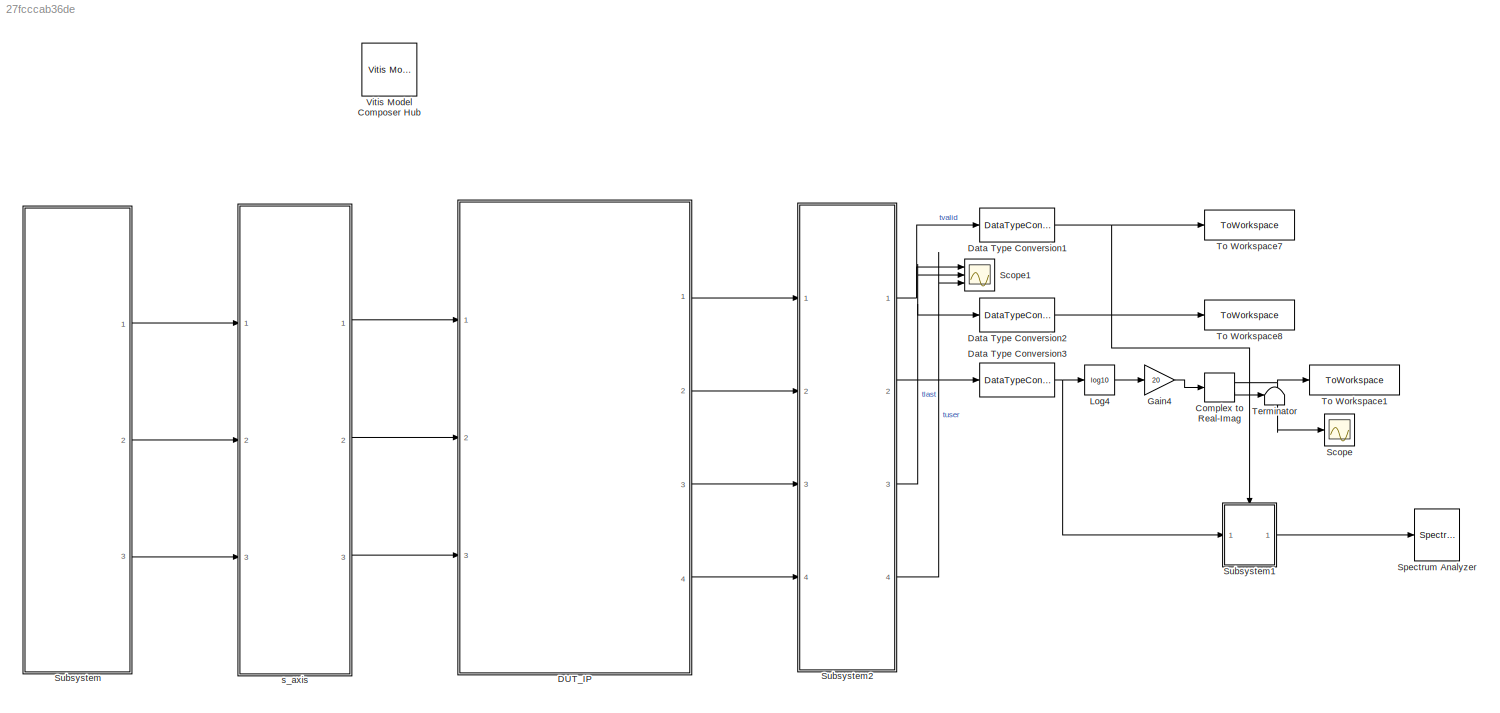
MODEL slx_27fcccab36de
KIND model
CONFIG AbsTol = auto
CONFIG EnableMultiTasking = off
CONFIG FixedStep = auto
CONFIG InitFcn = f = 12.288e6;\nfs = 61.44e6;\nN = 8;\nn = 0:N-1;\nHamming = 0.54 - 0.46 * cos(2*pi*n/N);\nNorm_Ham = sum(Hamming);\nHanning = 0.5 * (1 + cos(2*pi*n/N));\nNorm_Han = sum(Hanning);\n
CONFIG MaxStep = auto
CONFIG MinStep = auto
CONFIG RelTol = 1e-3
CONFIG SampleTimeConstraint = Unconstrained
CONFIG SolverName = VariableStepAuto
CONFIG StartTime = 0.0
CONFIG StopTime = 2048*15/fs
BLOCK [ComplexToRealImag] Complex to Real-Imag
  Ports = [1, 2]
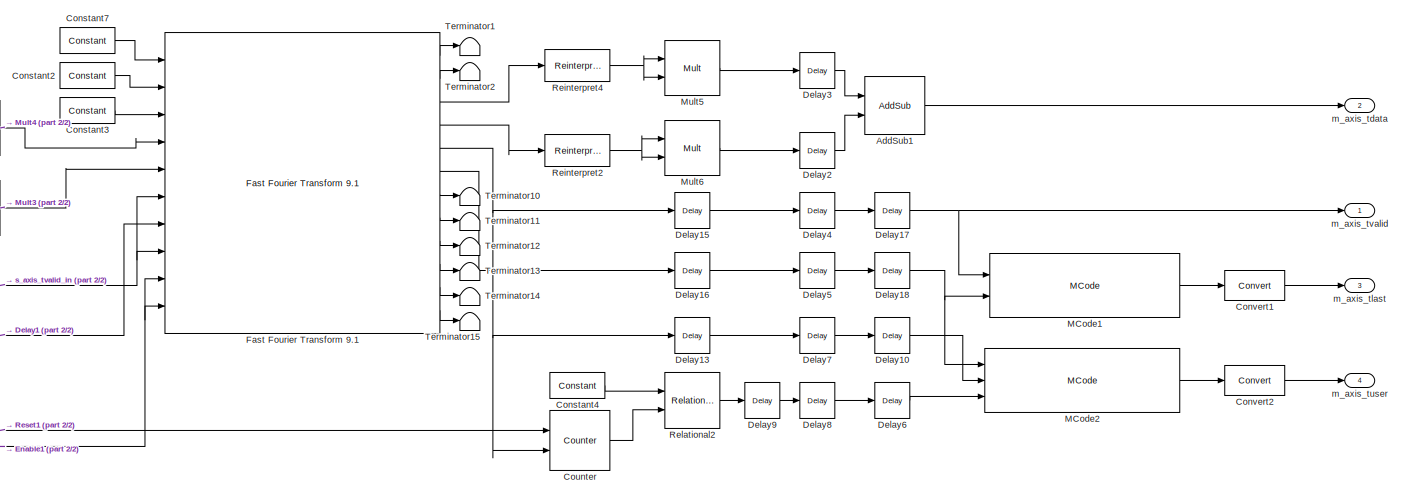
[diagram: DUT_IP - part 1/2, right side, full height]
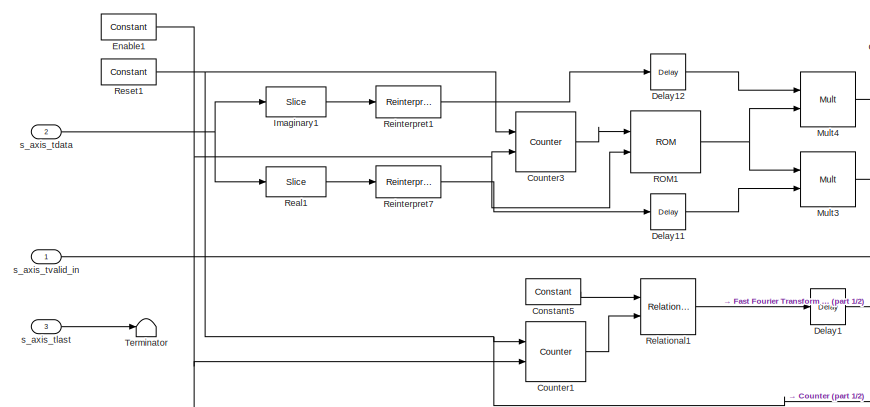
[diagram: DUT_IP - part 2/2, left side, full height]
BLOCK [SubSystem] DUT_IP
  Ports = [3, 4]
  RequestExecContextInheritance = off
BLOCK [Reference] DUT_IP/AddSub1  REF=hdlBasic/AddSub
  Ports = [2, 1]
  SourceBlock = hdlBasic/AddSub
  SourceType = Adder/Subtracter Block
BLOCK [Reference] DUT_IP/Constant2  REF=hdlBasic/Constant
  Ports = [0, 1]
  SourceBlock = hdlBasic/Constant
  SourceType = Constant Block Block
BLOCK [Reference] DUT_IP/Constant3  REF=hdlBasic/Constant
  Ports = [0, 1]
  SourceBlock = hdlBasic/Constant
  SourceType = Constant Block Block
BLOCK [Reference] DUT_IP/Constant4  REF=hdlBasic/Constant
  Ports = [0, 1]
  SourceBlock = hdlBasic/Constant
  SourceType = Constant Block Block
BLOCK [Reference] DUT_IP/Constant5  REF=hdlBasic/Constant
  Ports = [0, 1]
  SourceBlock = hdlBasic/Constant
  SourceType = Constant Block Block
BLOCK [Reference] DUT_IP/Constant7  REF=hdlBasic/Constant
  Ports = [0, 1]
  SourceBlock = hdlBasic/Constant
  SourceType = Constant Block Block
BLOCK [Reference] DUT_IP/Convert1  REF=hdlBasic/Convert
  Ports = [1, 1]
  SourceBlock = hdlBasic/Convert
  SourceType = Type Converter Block
BLOCK [Reference] DUT_IP/Convert2  REF=hdlBasic/Convert
  Ports = [1, 1]
  SourceBlock = hdlBasic/Convert
  SourceType = Type Converter Block
BLOCK [Reference] DUT_IP/Counter  REF=hdlBasic/Counter
  Ports = [2, 1]
  SourceBlock = hdlBasic/Counter
  SourceType = Counter Block
BLOCK [Reference] DUT_IP/Counter1  REF=hdlBasic/Counter
  Ports = [2, 1]
  SourceBlock = hdlBasic/Counter
  SourceType = Counter Block
BLOCK [Reference] DUT_IP/Counter3  REF=hdlBasic/Counter
  Ports = [2, 1]
  SourceBlock = hdlBasic/Counter
  SourceType = Counter Block
BLOCK [Reference] DUT_IP/Delay1  REF=hdlBasic/Delay
  Ports = [1, 1]
  SourceBlock = hdlBasic/Delay
  SourceType = Delay Block
BLOCK [Reference] DUT_IP/Delay10  REF=hdlBasic/Delay
  Ports = [1, 1]
  SourceBlock = hdlBasic/Delay
  SourceType = Delay Block
BLOCK [Reference] DUT_IP/Delay11  REF=hdlBasic/Delay
  Ports = [1, 1]
  SourceBlock = hdlBasic/Delay
  SourceType = Delay Block
BLOCK [Reference] DUT_IP/Delay12  REF=hdlBasic/Delay
  NameLocation = top
  Ports = [1, 1]
  SourceBlock = hdlBasic/Delay
  SourceType = Delay Block
BLOCK [Reference] DUT_IP/Delay13  REF=hdlBasic/Delay
  Ports = [1, 1]
  SourceBlock = hdlBasic/Delay
  SourceType = Delay Block
BLOCK [Reference] DUT_IP/Delay15  REF=hdlBasic/Delay
  Ports = [1, 1]
  SourceBlock = hdlBasic/Delay
  SourceType = Delay Block
BLOCK [Reference] DUT_IP/Delay16  REF=hdlBasic/Delay
  Ports = [1, 1]
  SourceBlock = hdlBasic/Delay
  SourceType = Delay Block
BLOCK [Reference] DUT_IP/Delay17  REF=hdlBasic/Delay
  Ports = [1, 1]
  SourceBlock = hdlBasic/Delay
  SourceType = Delay Block
BLOCK [Reference] DUT_IP/Delay18  REF=hdlBasic/Delay
  Ports = [1, 1]
  SourceBlock = hdlBasic/Delay
  SourceType = Delay Block
BLOCK [Reference] DUT_IP/Delay2  REF=hdlBasic/Delay
  Ports = [1, 1]
  SourceBlock = hdlBasic/Delay
  SourceType = Delay Block
BLOCK [Reference] DUT_IP/Delay3  REF=hdlBasic/Delay
  Ports = [1, 1]
  SourceBlock = hdlBasic/Delay
  SourceType = Delay Block
BLOCK [Reference] DUT_IP/Delay4  REF=hdlBasic/Delay
  Ports = [1, 1]
  SourceBlock = hdlBasic/Delay
  SourceType = Delay Block
BLOCK [Reference] DUT_IP/Delay5  REF=hdlBasic/Delay
  Ports = [1, 1]
  SourceBlock = hdlBasic/Delay
  SourceType = Delay Block
BLOCK [Reference] DUT_IP/Delay6  REF=hdlBasic/Delay
  Ports = [1, 1]
  SourceBlock = hdlBasic/Delay
  SourceType = Delay Block
BLOCK [Reference] DUT_IP/Delay7  REF=hdlBasic/Delay
  Ports = [1, 1]
  SourceBlock = hdlBasic/Delay
  SourceType = Delay Block
BLOCK [Reference] DUT_IP/Delay8  REF=hdlBasic/Delay
  Ports = [1, 1]
  SourceBlock = hdlBasic/Delay
  SourceType = Delay Block
BLOCK [Reference] DUT_IP/Delay9  REF=hdlBasic/Delay
  Ports = [1, 1]
  SourceBlock = hdlBasic/Delay
  SourceType = Delay Block
BLOCK [Reference] DUT_IP/Enable1  REF=hdlBasic/Constant
  Ports = [0, 1]
  SourceBlock = hdlBasic/Constant
  SourceType = Constant Block Block
BLOCK [Reference] DUT_IP/Fast Fourier Transform 9.1  REF=hdlDSPIP/Fast Fourier Transform 9.1 
  Ports = [10, 12]
  SourceBlock = hdlDSPIP/Fast Fourier Transform 9.1
  SourceType = Fast Fourier Transform 9.1  Block
BLOCK [Reference] DUT_IP/Imaginary1  REF=hdlBasic/Slice
  Ports = [1, 1]
  SourceBlock = hdlBasic/Slice
  SourceType = Bit Slice Extractor Block
BLOCK [Reference] DUT_IP/MCode1  REF=hdlBasic/MCode
  Ports = [2, 1]
  SourceBlock = hdlBasic/MCode
  SourceType = MCode
BLOCK [Reference] DUT_IP/MCode2  REF=hdlBasic/MCode
  Ports = [3, 1]
  SourceBlock = hdlBasic/MCode
  SourceType = MCode
BLOCK [Reference] DUT_IP/Mult3  REF=hdlBasic/Mult
  Ports = [2, 1]
  SourceBlock = hdlBasic/Mult
  SourceType = Multiplier Block
BLOCK [Reference] DUT_IP/Mult4  REF=hdlBasic/Mult
  Ports = [2, 1]
  SourceBlock = hdlBasic/Mult
  SourceType = Multiplier Block
BLOCK [Reference] DUT_IP/Mult5  REF=hdlBasic/Mult
  Ports = [2, 1]
  SourceBlock = hdlBasic/Mult
  SourceType = Multiplier Block
BLOCK [Reference] DUT_IP/Mult6  REF=hdlBasic/Mult
  Ports = [2, 1]
  SourceBlock = hdlBasic/Mult
  SourceType = Multiplier Block
BLOCK [Reference] DUT_IP/ROM1  REF=hdlBasic/ROM
  Ports = [2, 1]
  SourceBlock = hdlBasic/ROM
  SourceType = Single Port Read-Only Memory Block
BLOCK [Reference] DUT_IP/Real1  REF=hdlBasic/Slice
  Ports = [1, 1]
  SourceBlock = hdlBasic/Slice
  SourceType = Bit Slice Extractor Block
BLOCK [Reference] DUT_IP/Reinterpret1  REF=hdlBasic/Reinterpret
  Ports = [1, 1]
  SourceBlock = hdlBasic/Reinterpret
  SourceType = Type Reinterpreter Block
BLOCK [Reference] DUT_IP/Reinterpret2  REF=hdlBasic/Reinterpret
  Ports = [1, 1]
  SourceBlock = hdlBasic/Reinterpret
  SourceType = Type Reinterpreter Block
BLOCK [Reference] DUT_IP/Reinterpret4  REF=hdlBasic/Reinterpret
  Ports = [1, 1]
  SourceBlock = hdlBasic/Reinterpret
  SourceType = Type Reinterpreter Block
BLOCK [Reference] DUT_IP/Reinterpret7  REF=hdlBasic/Reinterpret
  Ports = [1, 1]
  SourceBlock = hdlBasic/Reinterpret
  SourceType = Type Reinterpreter Block
BLOCK [Reference] DUT_IP/Relational1  REF=hdlBasic/Relational
  Ports = [2, 1]
  SourceBlock = hdlBasic/Relational
  SourceType = Arithmetic Relational Operator Block
BLOCK [Reference] DUT_IP/Relational2  REF=hdlBasic/Relational
  Ports = [2, 1]
  SourceBlock = hdlBasic/Relational
  SourceType = Arithmetic Relational Operator Block
BLOCK [Reference] DUT_IP/Reset1  REF=hdlBasic/Constant
  Ports = [0, 1]
  SourceBlock = hdlBasic/Constant
  SourceType = Constant Block Block
BLOCK [Terminator] DUT_IP/Terminator
BLOCK [Terminator] DUT_IP/Terminator1
BLOCK [Terminator] DUT_IP/Terminator10
BLOCK [Terminator] DUT_IP/Terminator11
BLOCK [Terminator] DUT_IP/Terminator12
BLOCK [Terminator] DUT_IP/Terminator13
BLOCK [Terminator] DUT_IP/Terminator14
BLOCK [Terminator] DUT_IP/Terminator15
BLOCK [Terminator] DUT_IP/Terminator2
BLOCK [Outport] DUT_IP/m_axis_tdata
  Port = 2
BLOCK [Outport] DUT_IP/m_axis_tlast
  Port = 3
BLOCK [Outport] DUT_IP/m_axis_tuser
  Port = 4
BLOCK [Outport] DUT_IP/m_axis_tvalid
BLOCK [Inport] DUT_IP/s_axis_tdata
  Port = 2
BLOCK [Inport] DUT_IP/s_axis_tlast
  Port = 3
BLOCK [Inport] DUT_IP/s_axis_tvalid_in
BLOCK [DataTypeConversion] Data Type Conversion1
  OutDataTypeStr = double
  RndMeth = Floor
BLOCK [DataTypeConversion] Data Type Conversion2
  OutDataTypeStr = double
  RndMeth = Floor
BLOCK [DataTypeConversion] Data Type Conversion3
  OutDataTypeStr = double
  RndMeth = Floor
BLOCK [Gain] Gain4
  Gain = 20
BLOCK [Math] Log4
  Operator = log10
  OutputSignalType = real
  Ports = [1, 1]
BLOCK [Scope] Scope
  Floating = off
  NumInputPorts = 1
  Ports = [1]
  ScopeSpecificationString = Simulink.scopes.TimeScopeBlockCfg('CurrentConfiguration', extmgr.ConfigurationSet(extmgr.Configuration('Core','General UI',true),extmgr.Configuration('Core','Source UI',true),extmgr.Configuration('Sources','WiredSimulink',true,'DataLoggingVariableName','ScopeData2'),extmgr.Configuration('Visuals','Time Domain',true,'SerializedDisplays',{struct('MinYLimReal','-185.92436','MaxYLimReal','-12.44876','...<+1493ch>
BLOCK [Scope] Scope1
  Floating = off
  NumInputPorts = 3
  Ports = [3]
  ScopeSpecificationString = Simulink.scopes.TimeScopeBlockCfg('CurrentConfiguration', extmgr.ConfigurationSet(extmgr.Configuration('Core','General UI',true),extmgr.Configuration('Core','Source UI',true),extmgr.Configuration('Sources','WiredSimulink',true,'DataLoggingVariableName','ScopeData1'),extmgr.Configuration('Visuals','Time Domain',true,'SerializedDisplays',{struct('MinYLimReal','-0.125','MaxYLimReal','1.125','YLabelRe...<+2827ch>
BLOCK [SpectrumAnalyzer] Spectrum Analyzer
  IsFrequencyInputMode = 1
  Ports = [1]
  ScopeSpecificationString = spbscopes.SpectrumAnalyzerBlockCfg('CurrentConfiguration', extmgr.ConfigurationSet(extmgr.Configuration('Core','General UI',true),extmgr.Configuration('Core','Source UI',true),extmgr.Configuration('Sources','WiredSimulink',true),extmgr.Configuration('Visuals','Spectrum',true,'AxesProperties',struct('Color',{[0 0 0],[0 0 0]},'XColor',{[0.686274509803922 0.686274509803922 0.686274509803922],[0.68627...<+2847ch>
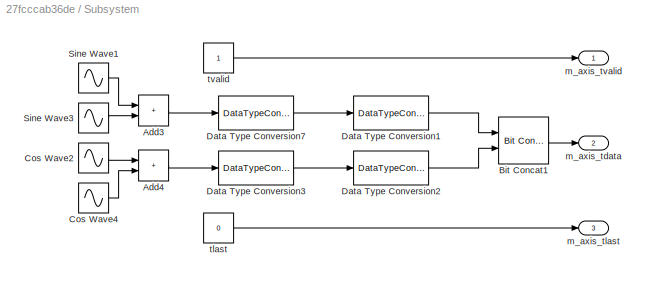
BLOCK [SubSystem] Subsystem
  Ports = [0, 3]
  RequestExecContextInheritance = off
BLOCK [Sum] Subsystem/Add3
  IconShape = rectangular
  Ports = [2, 1]
BLOCK [Sum] Subsystem/Add4
  IconShape = rectangular
  Ports = [2, 1]
BLOCK [Reference] Subsystem/Bit Concat1  REF=hdlsllib/Logic and Bit
Operations/Bit Concat
  Ports = [2, 1]
  SourceBlock = hdlsllib/Logic and Bit\nOperations/Bit Concat
  SourceProductBaseCode = SL
  SourceType = Bit Concat
BLOCK [Sin] Subsystem/Cos Wave2
  Amplitude = 0.4
  Frequency = f*2*pi
  Phase = pi/2
  Ports = [0, 1]
  SampleTime = 1/fs
BLOCK [Sin] Subsystem/Cos Wave4
  Amplitude = 0.4
  Frequency = f*pi
  Phase = pi/2
  Ports = [0, 1]
  SampleTime = 1/fs
BLOCK [DataTypeConversion] Subsystem/Data Type Conversion1
  ConvertRealWorld = Stored Integer (SI)
  OutDataTypeStr = uint16
  RndMeth = Floor
  SaturateOnIntegerOverflow = off
BLOCK [DataTypeConversion] Subsystem/Data Type Conversion2
  ConvertRealWorld = Stored Integer (SI)
  OutDataTypeStr = uint16
  RndMeth = Floor
  SaturateOnIntegerOverflow = off
BLOCK [DataTypeConversion] Subsystem/Data Type Conversion3
  OutDataTypeStr = fixdt(1,16,15)
  RndMeth = Floor
BLOCK [DataTypeConversion] Subsystem/Data Type Conversion7
  OutDataTypeStr = fixdt(1,16,15)
  RndMeth = Floor
BLOCK [Sin] Subsystem/Sine Wave1
  Amplitude = 0.4
  Frequency = f*2*pi
  Ports = [0, 1]
  SampleTime = 1/fs
BLOCK [Sin] Subsystem/Sine Wave3
  Amplitude = 0.4
  Frequency = f*pi
  Ports = [0, 1]
  SampleTime = 1/fs
BLOCK [Outport] Subsystem/m_axis_tdata
  Port = 2
BLOCK [Outport] Subsystem/m_axis_tlast
  Port = 3
BLOCK [Outport] Subsystem/m_axis_tvalid
BLOCK [Constant] Subsystem/tlast
  SampleTime = 1/fs
  Value = 0
BLOCK [Constant] Subsystem/tvalid
  SampleTime = 1/fs
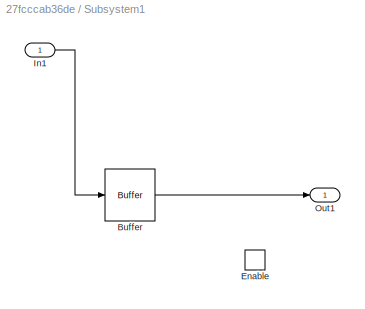
BLOCK [SubSystem] Subsystem1
  Ports = [1, 1, 1]
  RequestExecContextInheritance = off
BLOCK [Buffer] Subsystem1/Buffer
  N = 2048
  OutputFrames = off
BLOCK [EnablePort] Subsystem1/Enable
  Ports = []
BLOCK [Inport] Subsystem1/In1
BLOCK [Outport] Subsystem1/Out1
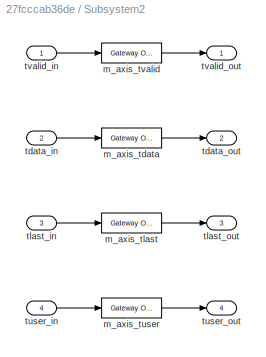
BLOCK [SubSystem] Subsystem2
  Ports = [4, 4]
  RequestExecContextInheritance = off
BLOCK [Reference] Subsystem2/m_axis_tdata  REF=hdlBasic/Gateway Out
  Ports = [1, 1]
  SourceBlock = hdlBasic/Gateway Out
  SourceType = Gateway Out Block
BLOCK [Reference] Subsystem2/m_axis_tlast  REF=hdlBasic/Gateway Out
  Ports = [1, 1]
  SourceBlock = hdlBasic/Gateway Out
  SourceType = Gateway Out Block
BLOCK [Reference] Subsystem2/m_axis_tuser  REF=hdlBasic/Gateway Out
  Ports = [1, 1]
  SourceBlock = hdlBasic/Gateway Out
  SourceType = Gateway Out Block
BLOCK [Reference] Subsystem2/m_axis_tvalid  REF=hdlBasic/Gateway Out
  Ports = [1, 1]
  SourceBlock = hdlBasic/Gateway Out
  SourceType = Gateway Out Block
BLOCK [Inport] Subsystem2/tdata_in
  Port = 2
BLOCK [Outport] Subsystem2/tdata_out
  Port = 2
BLOCK [Inport] Subsystem2/tlast_in
  Port = 3
BLOCK [Outport] Subsystem2/tlast_out
  Port = 3
BLOCK [Inport] Subsystem2/tuser_in
  Port = 4
BLOCK [Outport] Subsystem2/tuser_out
  Port = 4
BLOCK [Inport] Subsystem2/tvalid_in
BLOCK [Outport] Subsystem2/tvalid_out
BLOCK [Terminator] Terminator
BLOCK [ToWorkspace] To Workspace1
  FixptAsFi = on
  MaxDataPoints = inf
  Ports = [1]
  SampleTime = -1
  Save2DSignal = 2-D array (concatenate along first dimension)
  VariableName = FFT_out_log
BLOCK [ToWorkspace] To Workspace7
  FixptAsFi = on
  MaxDataPoints = inf
  Ports = [1]
  SampleTime = 1/fs
  Save2DSignal = 2-D array (concatenate along first dimension)
  VariableName = TVALID
BLOCK [ToWorkspace] To Workspace8
  FixptAsFi = on
  MaxDataPoints = inf
  Ports = [1]
  SampleTime = 1/fs
  Save2DSignal = 2-D array (concatenate along first dimension)
  VariableName = TLAST
BLOCK [Reference] Vitis Model Composer Hub  REF=vmcUtilities/Vitis Model Composer Hub
  Ports = []
  SourceBlock = vmcUtilities/Vitis Model Composer Hub
  SourceType = Implementation
  Tag = genX
  UserDataPersistent = on
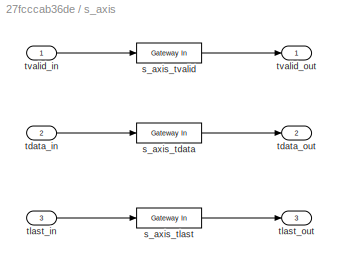
BLOCK [SubSystem] s_axis
  Ports = [3, 3]
  RequestExecContextInheritance = off
BLOCK [Reference] s_axis/s_axis_tdata  REF=hdlBasic/Gateway In
  Ports = [1, 1]
  SourceBlock = hdlBasic/Gateway In
  SourceType = Gateway In Block
BLOCK [Reference] s_axis/s_axis_tlast  REF=hdlBasic/Gateway In
  Ports = [1, 1]
  SourceBlock = hdlBasic/Gateway In
  SourceType = Gateway In Block
BLOCK [Reference] s_axis/s_axis_tvalid  REF=hdlBasic/Gateway In
  Ports = [1, 1]
  SourceBlock = hdlBasic/Gateway In
  SourceType = Gateway In Block
BLOCK [Inport] s_axis/tdata_in
  Port = 2
BLOCK [Outport] s_axis/tdata_out
  Port = 2
BLOCK [Inport] s_axis/tlast_in
  Port = 3
BLOCK [Outport] s_axis/tlast_out
  Port = 3
BLOCK [Inport] s_axis/tvalid_in
BLOCK [Outport] s_axis/tvalid_out
NET Complex to Real-Imag:1 -> Scope:1, To Workspace1:1
LINE Complex to Real-Imag:2 -> Terminator:1
LINE DUT_IP/AddSub1:1 -> DUT_IP/m_axis_tdata:1
LINE DUT_IP/Constant2:1 -> DUT_IP/Fast Fourier Transform 9.1:2
LINE DUT_IP/Constant3:1 -> DUT_IP/Fast Fourier Transform 9.1:3
LINE DUT_IP/Constant4:1 -> DUT_IP/Relational2:1
LINE DUT_IP/Constant5:1 -> DUT_IP/Relational1:1
LINE DUT_IP/Constant7:1 -> DUT_IP/Fast Fourier Transform 9.1:1
LINE DUT_IP/Convert1:1 -> DUT_IP/m_axis_tlast:1
LINE DUT_IP/Convert2:1 -> DUT_IP/m_axis_tuser:1
LINE DUT_IP/Counter1:1 -> DUT_IP/Relational1:2
LINE DUT_IP/Counter3:1 -> DUT_IP/ROM1:1
LINE DUT_IP/Counter:1 -> DUT_IP/Relational2:2
LINE DUT_IP/Delay10:1 -> DUT_IP/MCode2:2
LINE DUT_IP/Delay11:1 -> DUT_IP/Mult3:2
LINE DUT_IP/Delay12:1 -> DUT_IP/Mult4:1
LINE DUT_IP/Delay13:1 -> DUT_IP/Delay7:1
LINE DUT_IP/Delay15:1 -> DUT_IP/Delay4:1
LINE DUT_IP/Delay16:1 -> DUT_IP/Delay5:1
NET DUT_IP/Delay17:1 -> DUT_IP/MCode1:1, DUT_IP/m_axis_tvalid:1
NET DUT_IP/Delay18:1 -> DUT_IP/MCode1:2, DUT_IP/MCode2:1
LINE DUT_IP/Delay1:1 -> DUT_IP/Fast Fourier Transform 9.1:7
LINE DUT_IP/Delay2:1 -> DUT_IP/AddSub1:2
LINE DUT_IP/Delay3:1 -> DUT_IP/AddSub1:1
LINE DUT_IP/Delay4:1 -> DUT_IP/Delay17:1
LINE DUT_IP/Delay5:1 -> DUT_IP/Delay18:1
LINE DUT_IP/Delay6:1 -> DUT_IP/MCode2:3
LINE DUT_IP/Delay7:1 -> DUT_IP/Delay10:1
LINE DUT_IP/Delay8:1 -> DUT_IP/Delay6:1
LINE DUT_IP/Delay9:1 -> DUT_IP/Delay8:1
NET DUT_IP/Enable1:1 -> DUT_IP/Counter1:2, DUT_IP/Counter3:2, DUT_IP/Fast Fourier Transform 9.1:10, DUT_IP/Fast Fourier Transform 9.1:9, DUT_IP/ROM1:2
LINE DUT_IP/Fast Fourier Transform 9.1:1 -> DUT_IP/Terminator1:1
LINE DUT_IP/Fast Fourier Transform 9.1:10 -> DUT_IP/Terminator13:1
LINE DUT_IP/Fast Fourier Transform 9.1:11 -> DUT_IP/Terminator14:1
LINE DUT_IP/Fast Fourier Transform 9.1:12 -> DUT_IP/Terminator15:1
LINE DUT_IP/Fast Fourier Transform 9.1:2 -> DUT_IP/Terminator2:1
LINE DUT_IP/Fast Fourier Transform 9.1:3 -> DUT_IP/Reinterpret4:1
LINE DUT_IP/Fast Fourier Transform 9.1:4 -> DUT_IP/Reinterpret2:1
NET DUT_IP/Fast Fourier Transform 9.1:5 -> DUT_IP/Counter:2, DUT_IP/Delay13:1, DUT_IP/Delay15:1
LINE DUT_IP/Fast Fourier Transform 9.1:6 -> DUT_IP/Delay16:1
LINE DUT_IP/Fast Fourier Transform 9.1:7 -> DUT_IP/Terminator10:1
LINE DUT_IP/Fast Fourier Transform 9.1:8 -> DUT_IP/Terminator11:1
LINE DUT_IP/Fast Fourier Transform 9.1:9 -> DUT_IP/Terminator12:1
LINE DUT_IP/Imaginary1:1 -> DUT_IP/Reinterpret1:1
LINE DUT_IP/MCode1:1 -> DUT_IP/Convert1:1
LINE DUT_IP/MCode2:1 -> DUT_IP/Convert2:1
LINE DUT_IP/Mult3:1 -> DUT_IP/Fast Fourier Transform 9.1:5
LINE DUT_IP/Mult4:1 -> DUT_IP/Fast Fourier Transform 9.1:4
LINE DUT_IP/Mult5:1 -> DUT_IP/Delay3:1
LINE DUT_IP/Mult6:1 -> DUT_IP/Delay2:1
NET DUT_IP/ROM1:1 -> DUT_IP/Mult3:1, DUT_IP/Mult4:2
LINE DUT_IP/Real1:1 -> DUT_IP/Reinterpret7:1
LINE DUT_IP/Reinterpret1:1 -> DUT_IP/Delay12:1
NET DUT_IP/Reinterpret2:1 -> DUT_IP/Mult6:1, DUT_IP/Mult6:2
NET DUT_IP/Reinterpret4:1 -> DUT_IP/Mult5:1, DUT_IP/Mult5:2
LINE DUT_IP/Reinterpret7:1 -> DUT_IP/Delay11:1
LINE DUT_IP/Relational1:1 -> DUT_IP/Delay1:1
LINE DUT_IP/Relational2:1 -> DUT_IP/Delay9:1
NET DUT_IP/Reset1:1 -> DUT_IP/Counter1:1, DUT_IP/Counter3:1, DUT_IP/Counter:1
NET DUT_IP/s_axis_tdata:1 -> DUT_IP/Imaginary1:1, DUT_IP/Real1:1
LINE DUT_IP/s_axis_tlast:1 -> DUT_IP/Terminator:1
NET DUT_IP/s_axis_tvalid_in:1 -> DUT_IP/Fast Fourier Transform 9.1:6, DUT_IP/Fast Fourier Transform 9.1:8
LINE DUT_IP:1 -> Subsystem2:1
LINE DUT_IP:2 -> Subsystem2:2
LINE DUT_IP:3 -> Subsystem2:3
LINE DUT_IP:4 -> Subsystem2:4
NET Data Type Conversion1:1 -> Subsystem1:enable, To Workspace7:1
LINE Data Type Conversion2:1 -> To Workspace8:1
NET Data Type Conversion3:1 -> Log4:1, Subsystem1:1
LINE Gain4:1 -> Complex to Real-Imag:1
LINE Log4:1 -> Gain4:1
LINE Subsystem/Add3:1 -> Subsystem/Data Type Conversion7:1
LINE Subsystem/Add4:1 -> Subsystem/Data Type Conversion3:1
LINE Subsystem/Bit Concat1:1 -> Subsystem/m_axis_tdata:1
LINE Subsystem/Cos Wave2:1 -> Subsystem/Add4:1
LINE Subsystem/Cos Wave4:1 -> Subsystem/Add4:2
LINE Subsystem/Data Type Conversion1:1 -> Subsystem/Bit Concat1:1
LINE Subsystem/Data Type Conversion2:1 -> Subsystem/Bit Concat1:2
LINE Subsystem/Data Type Conversion3:1 -> Subsystem/Data Type Conversion2:1
LINE Subsystem/Data Type Conversion7:1 -> Subsystem/Data Type Conversion1:1
LINE Subsystem/Sine Wave1:1 -> Subsystem/Add3:1
LINE Subsystem/Sine Wave3:1 -> Subsystem/Add3:2
LINE Subsystem/tlast:1 -> Subsystem/m_axis_tlast:1
LINE Subsystem/tvalid:1 -> Subsystem/m_axis_tvalid:1
LINE Subsystem1/Buffer:1 -> Subsystem1/Out1:1
LINE Subsystem1/In1:1 -> Subsystem1/Buffer:1
LINE Subsystem1:1 -> Spectrum Analyzer:1
LINE Subsystem2/m_axis_tdata:1 -> Subsystem2/tdata_out:1
LINE Subsystem2/m_axis_tlast:1 -> Subsystem2/tlast_out:1
LINE Subsystem2/m_axis_tuser:1 -> Subsystem2/tuser_out:1
LINE Subsystem2/m_axis_tvalid:1 -> Subsystem2/tvalid_out:1
LINE Subsystem2/tdata_in:1 -> Subsystem2/m_axis_tdata:1
LINE Subsystem2/tlast_in:1 -> Subsystem2/m_axis_tlast:1
LINE Subsystem2/tuser_in:1 -> Subsystem2/m_axis_tuser:1
LINE Subsystem2/tvalid_in:1 -> Subsystem2/m_axis_tvalid:1
NET Subsystem2:1 -> Data Type Conversion1:1, Scope1:1
LINE Subsystem2:2 -> Data Type Conversion3:1
NET Subsystem2:3 -> Data Type Conversion2:1, Scope1:2
LINE Subsystem2:4 -> Scope1:3
LINE Subsystem:1 -> s_axis:1
LINE Subsystem:2 -> s_axis:2
LINE Subsystem:3 -> s_axis:3
LINE s_axis/s_axis_tdata:1 -> s_axis/tdata_out:1
LINE s_axis/s_axis_tlast:1 -> s_axis/tlast_out:1
LINE s_axis/s_axis_tvalid:1 -> s_axis/tvalid_out:1
LINE s_axis/tdata_in:1 -> s_axis/s_axis_tdata:1
LINE s_axis/tlast_in:1 -> s_axis/s_axis_tlast:1
LINE s_axis/tvalid_in:1 -> s_axis/s_axis_tvalid:1
LINE s_axis:1 -> DUT_IP:1
LINE s_axis:2 -> DUT_IP:2
LINE s_axis:3 -> DUT_IP:3
note: NET lines group one-source signal fan-out (src -> all destinations, sorted); 1:1 wires keep LINE
